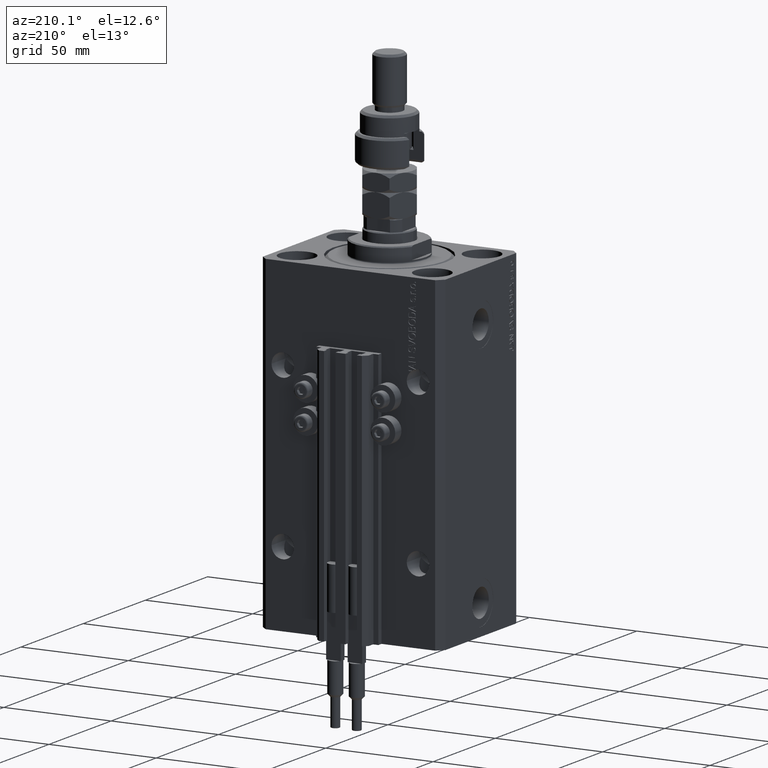
[diagram: clean part render]
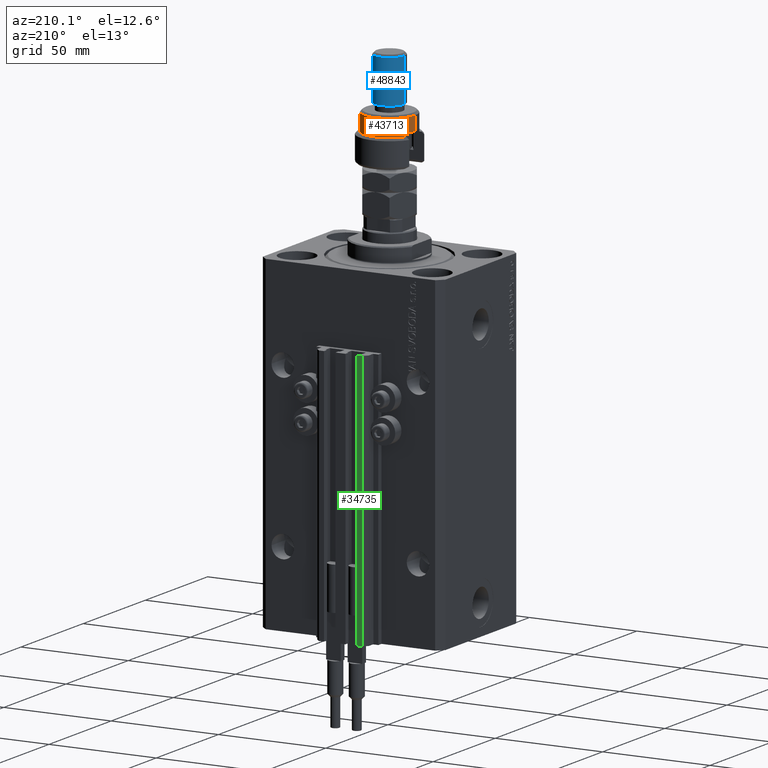
[diagram: same view with three faces highlighted in distinct colors, each labeled with its STEP entity id]
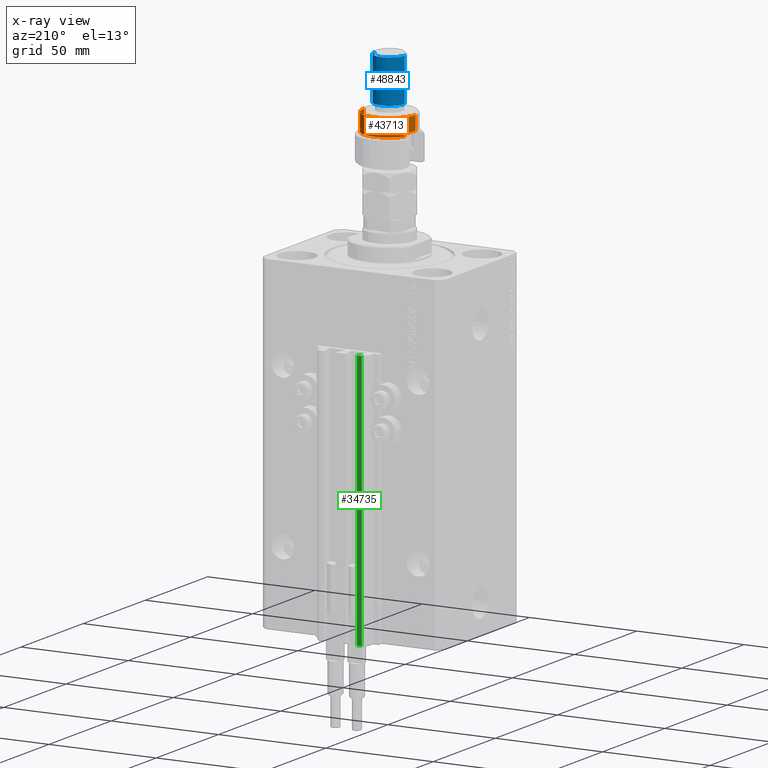
[diagram: x-ray of the same camera — body ghosted, the three highlighted faces saturated]
A machine part, auxiliary view with three faces highlighted in distinct colors.
The next image is the same camera in x-ray (body ghosted, the three faces saturated) — at least one of them is partly hidden behind the body in this view.
Their STEP definitions:

[orange] entity #43713 — the highlighted cylindrical surface (edge-blend (fillet) strip) has radius 12 mm, axis along (-0, -0, -1).
#736 = DIRECTION ( 'NONE',  ( -0.000000000000000000, -0.000000000000000000, -1.000000000000000000 ) ) ;
#763 = DIRECTION ( 'NONE',  ( -0.000000000000000000, -0.000000000000000000, -1.000000000000000000 ) ) ;
#998 = DIRECTION ( 'NONE',  ( -1.000000000000000000, 0.000000000000000000, 0.000000000000000000 ) ) ;
#1023 = EDGE_LOOP ( 'NONE', ( #3706, #14965, #16442, #38150, #28650, #26028 ) ) ;
#1562 = DIRECTION ( 'NONE',  ( 0.000000000000000000, 0.000000000000000000, 1.000000000000000000 ) ) ;
#2060 = DIRECTION ( 'NONE',  ( 0.000000000000000000, 0.000000000000000000, -1.000000000000000000 ) ) ;
#3706 = ORIENTED_EDGE ( 'NONE', *, *, #49975, .T. ) ;
#4380 = EDGE_CURVE ( 'NONE', #21875, #5245, #23396, .T. ) ;
#4632 = CARTESIAN_POINT ( 'NONE',  ( 12.00000000000000178, 1.469576158976824144E-15, 20.99999999999999645 ) ) ;
#5245 = VERTEX_POINT ( 'NONE', #51810 ) ;
#6063 = DIRECTION ( 'NONE',  ( 1.000000000000000000, 0.000000000000000000, 0.000000000000000000 ) ) ;
#7238 = AXIS2_PLACEMENT_3D ( 'NONE', #38284, #2060, #14226 ) ;
#9789 = CARTESIAN_POINT ( 'NONE',  ( -10.39230484541326760, 6.000000000000000000, 13.00000000000000000 ) ) ;
#9930 = VERTEX_POINT ( 'NONE', #27732 ) ;
#11767 = EDGE_CURVE ( 'NONE', #13096, #14195, #36734, .T. ) ;
#13096 = VERTEX_POINT ( 'NONE', #36548 ) ;
#14195 = VERTEX_POINT ( 'NONE', #19326 ) ;
#14226 = DIRECTION ( 'NONE',  ( 1.000000000000000000, 0.000000000000000000, 0.000000000000000000 ) ) ;
#14965 = ORIENTED_EDGE ( 'NONE', *, *, #4380, .T. ) ;
#15728 = EDGE_CURVE ( 'NONE', #14195, #9930, #22075, .T. ) ;
#16442 = ORIENTED_EDGE ( 'NONE', *, *, #27457, .T. ) ;
#17581 = CARTESIAN_POINT ( 'NONE',  ( -10.39230484541326760, 6.000000000000000000, 22.00000000000000000 ) ) ;
#19326 = CARTESIAN_POINT ( 'NONE',  ( -12.00000000000000178, 0.000000000000000000, 14.50000000000000000 ) ) ;
#21270 = DIRECTION ( 'NONE',  ( -1.000000000000000000, 0.000000000000000000, 0.000000000000000000 ) ) ;
#21875 = VERTEX_POINT ( 'NONE', #4632 ) ;
#21994 = VECTOR ( 'NONE', #42728, 1000.000000000000000 ) ;
#22075 = CIRCLE ( 'NONE', #39820, 12.00000000000000178 ) ;
#23280 = CIRCLE ( 'NONE', #7238, 12.00000000000000178 ) ;
#23396 = LINE ( 'NONE', #51681, #21994 ) ;
#25760 = CARTESIAN_POINT ( 'NONE',  ( 0.000000000000000000, 0.000000000000000000, 14.50000000000000000 ) ) ;
#26028 = ORIENTED_EDGE ( 'NONE', *, *, #11767, .F. ) ;
#27457 = EDGE_CURVE ( 'NONE', #5245, #34787, #40987, .T. ) ;
#27732 = CARTESIAN_POINT ( 'NONE',  ( -10.39230484541326582, 5.999999999999998224, 14.50000000000000000 ) ) ;
#28650 = ORIENTED_EDGE ( 'NONE', *, *, #15728, .F. ) ;
#33979 = LINE ( 'NONE', #17581, #41785 ) ;
#34245 = DIRECTION ( 'NONE',  ( 0.000000000000000000, 0.000000000000000000, 1.000000000000000000 ) ) ;
#34787 = VERTEX_POINT ( 'NONE', #9789 ) ;
#36548 = CARTESIAN_POINT ( 'NONE',  ( -12.00000000000000178, 0.000000000000000000, 20.99999999999999645 ) ) ;
#36734 = LINE ( 'NONE', #36984, #40467 ) ;
#36865 = DIRECTION ( 'NONE',  ( 0.000000000000000000, 0.000000000000000000, -1.000000000000000000 ) ) ;
#36958 = CYLINDRICAL_SURFACE ( 'NONE', #45103, 12.00000000000000178 ) ;
#36984 = CARTESIAN_POINT ( 'NONE',  ( -12.00000000000000178, 0.000000000000000000, 22.00000000000000000 ) ) ;
#38150 = ORIENTED_EDGE ( 'NONE', *, *, #48003, .T. ) ;
#38284 = CARTESIAN_POINT ( 'NONE',  ( 0.000000000000000000, 0.000000000000000000, 20.99999999999999645 ) ) ;
#39820 = AXIS2_PLACEMENT_3D ( 'NONE', #25760, #36865, #21270 ) ;
#40152 = AXIS2_PLACEMENT_3D ( 'NONE', #49685, #1562, #6063 ) ;
#40467 = VECTOR ( 'NONE', #763, 1000.000000000000000 ) ;
#40957 = FACE_OUTER_BOUND ( 'NONE', #1023, .T. ) ;
#40987 = CIRCLE ( 'NONE', #40152, 12.00000000000000178 ) ;
#41785 = VECTOR ( 'NONE', #34245, 1000.000000000000000 ) ;
#42728 = DIRECTION ( 'NONE',  ( -0.000000000000000000, -0.000000000000000000, -1.000000000000000000 ) ) ;
#43713 = ADVANCED_FACE ( 'NONE', ( #40957 ), #36958, .T. ) ;
#45103 = AXIS2_PLACEMENT_3D ( 'NONE', #45422, #736, #998 ) ;
#45422 = CARTESIAN_POINT ( 'NONE',  ( 0.000000000000000000, 0.000000000000000000, 22.00000000000000000 ) ) ;
#48003 = EDGE_CURVE ( 'NONE', #34787, #9930, #33979, .T. ) ;
#49685 = CARTESIAN_POINT ( 'NONE',  ( 0.000000000000000000, 0.000000000000000000, 13.00000000000000000 ) ) ;
#49975 = EDGE_CURVE ( 'NONE', #13096, #21875, #23280, .T. ) ;
#51681 = CARTESIAN_POINT ( 'NONE',  ( 12.00000000000000178, 1.469576158976824144E-15, 22.00000000000000000 ) ) ;
#51810 = CARTESIAN_POINT ( 'NONE',  ( 12.00000000000000178, 1.469576158976824144E-15, 13.00000000000000000 ) ) ;

[blue] entity #48843 — the highlighted cylindrical surface (edge-blend (fillet) strip) has radius 7 mm, axis along (-0, -0, -1).
#2387 = AXIS2_PLACEMENT_3D ( 'NONE', #50767, #11613, #38608 ) ;
#3307 = CARTESIAN_POINT ( 'NONE',  ( -7.000000000000000000, 0.000000000000000000, 46.00000000000000000 ) ) ;
#3647 = CARTESIAN_POINT ( 'NONE',  ( -7.000000000000000000, 0.000000000000000000, 44.99999999999999289 ) ) ;
#6602 = FACE_OUTER_BOUND ( 'NONE', #12334, .T. ) ;
#11613 = DIRECTION ( 'NONE',  ( -0.000000000000000000, -0.000000000000000000, 1.000000000000000000 ) ) ;
#11912 = ORIENTED_EDGE ( 'NONE', *, *, #33355, .T. ) ;
#12151 = DIRECTION ( 'NONE',  ( 1.000000000000000000, 0.000000000000000000, 0.000000000000000000 ) ) ;
#12334 = EDGE_LOOP ( 'NONE', ( #14593, #37392, #11912, #30303 ) ) ;
#13266 = VERTEX_POINT ( 'NONE', #3647 ) ;
#14593 = ORIENTED_EDGE ( 'NONE', *, *, #15943, .T. ) ;
#14947 = LINE ( 'NONE', #46685, #31679 ) ;
#15943 = EDGE_CURVE ( 'NONE', #13266, #31109, #51622, .T. ) ;
#16542 = VERTEX_POINT ( 'NONE', #33730 ) ;
#18680 = AXIS2_PLACEMENT_3D ( 'NONE', #27739, #24050, #12151 ) ;
#19847 = AXIS2_PLACEMENT_3D ( 'NONE', #46270, #46541, #50763 ) ;
#22733 = CYLINDRICAL_SURFACE ( 'NONE', #19847, 7.000000000000000000 ) ;
#23677 = DIRECTION ( 'NONE',  ( -0.000000000000000000, -0.000000000000000000, -1.000000000000000000 ) ) ;
#24050 = DIRECTION ( 'NONE',  ( 0.000000000000000000, 0.000000000000000000, -1.000000000000000000 ) ) ;
#27739 = CARTESIAN_POINT ( 'NONE',  ( 0.000000000000000000, 0.000000000000000000, 44.99999999999999289 ) ) ;
#28844 = CARTESIAN_POINT ( 'NONE',  ( 7.000000000000000000, 8.572527594031473190E-16, 44.99999999999999289 ) ) ;
#30303 = ORIENTED_EDGE ( 'NONE', *, *, #37600, .F. ) ;
#31078 = DIRECTION ( 'NONE',  ( -0.000000000000000000, -0.000000000000000000, -1.000000000000000000 ) ) ;
#31080 = CIRCLE ( 'NONE', #2387, 7.000000000000000000 ) ;
#31109 = VERTEX_POINT ( 'NONE', #28844 ) ;
#31336 = CARTESIAN_POINT ( 'NONE',  ( 7.000000000000000000, 8.572527594031473190E-16, 24.99999999999998934 ) ) ;
#31679 = VECTOR ( 'NONE', #31078, 1000.000000000000000 ) ;
#33355 = EDGE_CURVE ( 'NONE', #36612, #16542, #31080, .T. ) ;
#33730 = CARTESIAN_POINT ( 'NONE',  ( -7.000000000000000000, 0.000000000000000000, 24.99999999999998934 ) ) ;
#36612 = VERTEX_POINT ( 'NONE', #31336 ) ;
#37392 = ORIENTED_EDGE ( 'NONE', *, *, #44831, .T. ) ;
#37600 = EDGE_CURVE ( 'NONE', #13266, #16542, #39546, .T. ) ;
#38608 = DIRECTION ( 'NONE',  ( 1.000000000000000000, 0.000000000000000000, 0.000000000000000000 ) ) ;
#39546 = LINE ( 'NONE', #3307, #45708 ) ;
#44831 = EDGE_CURVE ( 'NONE', #31109, #36612, #14947, .T. ) ;
#45708 = VECTOR ( 'NONE', #23677, 1000.000000000000000 ) ;
#46270 = CARTESIAN_POINT ( 'NONE',  ( 0.000000000000000000, 0.000000000000000000, 46.00000000000000000 ) ) ;
#46541 = DIRECTION ( 'NONE',  ( -0.000000000000000000, -0.000000000000000000, -1.000000000000000000 ) ) ;
#46685 = CARTESIAN_POINT ( 'NONE',  ( 7.000000000000000000, 8.572527594031473190E-16, 46.00000000000000000 ) ) ;
#48843 = ADVANCED_FACE ( 'NONE', ( #6602 ), #22733, .T. ) ;
#50763 = DIRECTION ( 'NONE',  ( -1.000000000000000000, 0.000000000000000000, 0.000000000000000000 ) ) ;
#50767 = CARTESIAN_POINT ( 'NONE',  ( 0.000000000000000000, 0.000000000000000000, 24.99999999999998934 ) ) ;
#51622 = CIRCLE ( 'NONE', #18680, 7.000000000000000000 ) ;

[green] entity #34735 — the highlighted planar face has unit normal (0, 1, 0).
#421 = LINE ( 'NONE', #44065, #17596 ) ;
#1123 = DIRECTION ( 'NONE',  ( -1.000000000000000000, 0.000000000000000000, 0.000000000000000000 ) ) ;
#1788 = VERTEX_POINT ( 'NONE', #5487 ) ;
#3599 = DIRECTION ( 'NONE',  ( 0.000000000000000000, 0.000000000000000000, 1.000000000000000000 ) ) ;
#3829 = DIRECTION ( 'NONE',  ( -1.000000000000000000, 0.000000000000000000, 0.000000000000000000 ) ) ;
#4218 = ORIENTED_EDGE ( 'NONE', *, *, #24559, .T. ) ;
#5487 = CARTESIAN_POINT ( 'NONE',  ( -7.650000000000002132, 39.49999999999999289, -33.00000000000000000 ) ) ;
#7703 = DIRECTION ( 'NONE',  ( 0.000000000000000000, 1.000000000000000000, -0.000000000000000000 ) ) ;
#9743 = CARTESIAN_POINT ( 'NONE',  ( -10.00000000000000000, 39.49999999999999289, -33.00000000000000000 ) ) ;
#13841 = VECTOR ( 'NONE', #17856, 1000.000000000000000 ) ;
#15733 = LINE ( 'NONE', #40065, #48528 ) ;
#17596 = VECTOR ( 'NONE', #3599, 1000.000000000000000 ) ;
#17856 = DIRECTION ( 'NONE',  ( 0.000000000000000000, 0.000000000000000000, 1.000000000000000000 ) ) ;
#19662 = ORIENTED_EDGE ( 'NONE', *, *, #44894, .F. ) ;
#23573 = DIRECTION ( 'NONE',  ( 0.000000000000000000, 0.000000000000000000, 1.000000000000000000 ) ) ;
#23631 = AXIS2_PLACEMENT_3D ( 'NONE', #43936, #7703, #23573 ) ;
#23989 = CARTESIAN_POINT ( 'NONE',  ( -7.650000000000002132, 39.49999999999999289, -153.0000000000000000 ) ) ;
#24040 = VECTOR ( 'NONE', #1123, 1000.000000000000000 ) ;
#24559 = EDGE_CURVE ( 'NONE', #47077, #36275, #33989, .T. ) ;
#25006 = EDGE_LOOP ( 'NONE', ( #19662, #48000, #39267, #4218 ) ) ;
#30024 = CARTESIAN_POINT ( 'NONE',  ( -10.00000000000000000, 39.49999999999999289, -153.0000000000000000 ) ) ;
#31757 = VERTEX_POINT ( 'NONE', #23989 ) ;
#32300 = PLANE ( 'NONE',  #23631 ) ;
#33989 = LINE ( 'NONE', #30024, #13841 ) ;
#34107 = EDGE_CURVE ( 'NONE', #31757, #1788, #421, .T. ) ;
#34735 = ADVANCED_FACE ( 'NONE', ( #36242 ), #32300, .T. ) ;
#35253 = CARTESIAN_POINT ( 'NONE',  ( -10.00000000000000000, 39.49999999999999289, -153.0000000000000000 ) ) ;
#36242 = FACE_OUTER_BOUND ( 'NONE', #25006, .T. ) ;
#36275 = VERTEX_POINT ( 'NONE', #9743 ) ;
#37344 = LINE ( 'NONE', #42386, #24040 ) ;
#39267 = ORIENTED_EDGE ( 'NONE', *, *, #48377, .T. ) ;
#40065 = CARTESIAN_POINT ( 'NONE',  ( -7.650000000000002132, 39.49999999999999289, -33.00000000000000000 ) ) ;
#42386 = CARTESIAN_POINT ( 'NONE',  ( -7.650000000000002132, 39.49999999999999289, -153.0000000000000000 ) ) ;
#43936 = CARTESIAN_POINT ( 'NONE',  ( -7.650000000000002132, 39.49999999999999289, -153.0000000000000000 ) ) ;
#44065 = CARTESIAN_POINT ( 'NONE',  ( -7.650000000000002132, 39.49999999999999289, -153.0000000000000000 ) ) ;
#44894 = EDGE_CURVE ( 'NONE', #1788, #36275, #15733, .T. ) ;
#47077 = VERTEX_POINT ( 'NONE', #35253 ) ;
#48000 = ORIENTED_EDGE ( 'NONE', *, *, #34107, .F. ) ;
#48377 = EDGE_CURVE ( 'NONE', #31757, #47077, #37344, .T. ) ;
#48528 = VECTOR ( 'NONE', #3829, 1000.000000000000000 ) ;